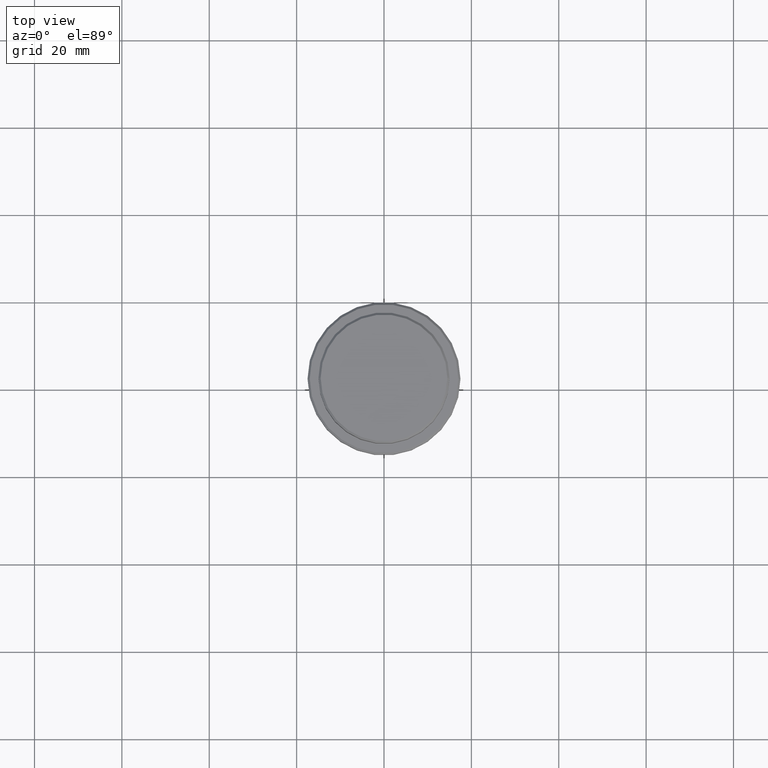
[diagram: clean part render]
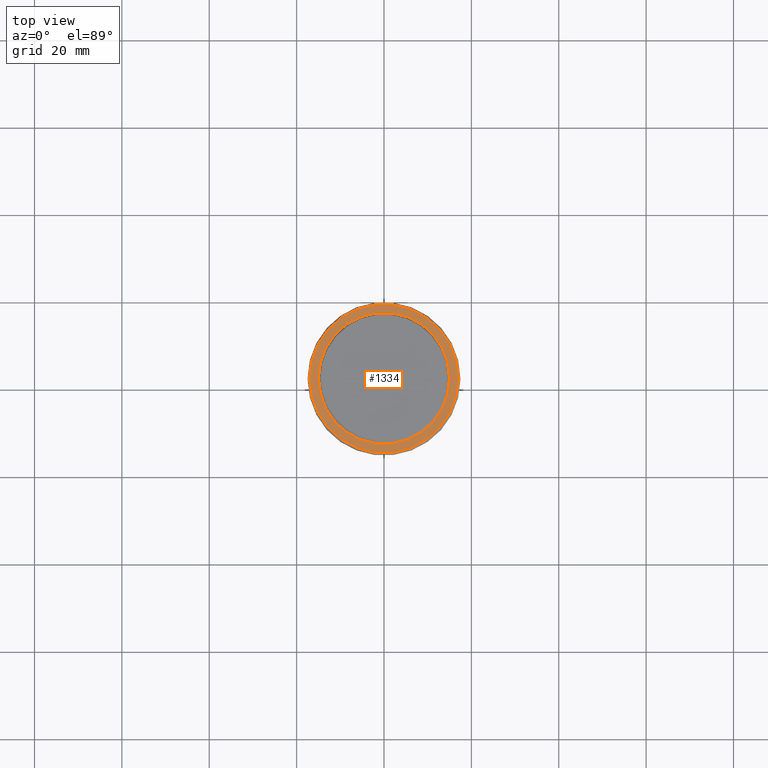
[diagram: same view with one face highlighted and labeled with its STEP entity id]
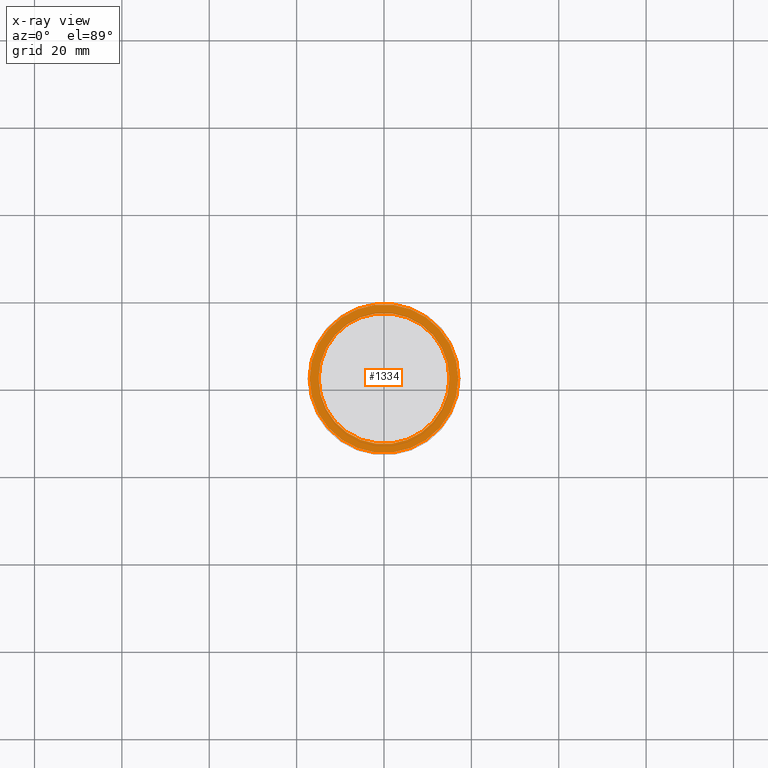
[diagram: x-ray of the same camera — body ghosted, the highlighted face saturated]
A machine part, top view. The second image highlights one B-rep face of the part: STEP entity #1334.
The next image is the same camera in x-ray: the body ghosted, the highlighted face saturated — about 0% of this face is hidden behind the body in this view.
In plain terms, the highlighted planar face has unit normal (0, -0, 1).
Its self-contained STEP definition (entity closure, byte-faithful):
#38 = CARTESIAN_POINT ( 'NONE',  ( 0.000000000000000000, 14.49999999999999467, -9.000000000000000000 ) ) ;
#66 = CIRCLE ( 'NONE', #517, 14.99999999999999289 ) ;
#98 = DIRECTION ( 'NONE',  ( 0.000000000000000000, 0.000000000000000000, -1.000000000000000000 ) ) ;
#146 = AXIS2_PLACEMENT_3D ( 'NONE', #398, #1290, #604 ) ;
#246 = EDGE_CURVE ( 'NONE', #1289, #1051, #868, .T. ) ;
#254 = EDGE_LOOP ( 'NONE', ( #673, #1263 ) ) ;
#258 = DIRECTION ( 'NONE',  ( -0.000000000000000000, -0.000000000000000000, 1.000000000000000000 ) ) ;
#398 = CARTESIAN_POINT ( 'NONE',  ( 0.000000000000000000, 0.000000000000000000, -9.000000000000000000 ) ) ;
#420 = EDGE_CURVE ( 'NONE', #1051, #1289, #66, .T. ) ;
#435 = AXIS2_PLACEMENT_3D ( 'NONE', #38, #688, #1224 ) ;
#478 = PLANE ( 'NONE',  #435 ) ;
#485 = DIRECTION ( 'NONE',  ( 1.000000000000000000, 0.000000000000000000, 0.000000000000000000 ) ) ;
#517 = AXIS2_PLACEMENT_3D ( 'NONE', #1412, #98, #1399 ) ;
#551 = VERTEX_POINT ( 'NONE', #958 ) ;
#567 = CARTESIAN_POINT ( 'NONE',  ( -14.99999999999999289, 1.836970198721028800E-15, -9.000000000000000000 ) ) ;
#602 = CIRCLE ( 'NONE', #818, 16.99999999999998579 ) ;
#604 = DIRECTION ( 'NONE',  ( 1.000000000000000000, 0.000000000000000000, 0.000000000000000000 ) ) ;
#640 = ORIENTED_EDGE ( 'NONE', *, *, #246, .T. ) ;
#673 = ORIENTED_EDGE ( 'NONE', *, *, #951, .T. ) ;
#688 = DIRECTION ( 'NONE',  ( 0.000000000000000000, -0.000000000000000000, 1.000000000000000000 ) ) ;
#702 = CARTESIAN_POINT ( 'NONE',  ( -16.99999999999998579, 0.000000000000000000, -9.000000000000000000 ) ) ;
#733 = VERTEX_POINT ( 'NONE', #702 ) ;
#818 = AXIS2_PLACEMENT_3D ( 'NONE', #1249, #258, #485 ) ;
#826 = CARTESIAN_POINT ( 'NONE',  ( 0.000000000000000000, 0.000000000000000000, -9.000000000000000000 ) ) ;
#835 = ORIENTED_EDGE ( 'NONE', *, *, #420, .T. ) ;
#868 = CIRCLE ( 'NONE', #146, 14.99999999999999289 ) ;
#930 = AXIS2_PLACEMENT_3D ( 'NONE', #826, #1057, #1049 ) ;
#951 = EDGE_CURVE ( 'NONE', #733, #551, #602, .T. ) ;
#958 = CARTESIAN_POINT ( 'NONE',  ( 16.99999999999998579, 2.112515728529183278E-15, -9.000000000000000000 ) ) ;
#965 = CARTESIAN_POINT ( 'NONE',  ( 14.99999999999999289, 0.000000000000000000, -9.000000000000000000 ) ) ;
#1049 = DIRECTION ( 'NONE',  ( 1.000000000000000000, 0.000000000000000000, 0.000000000000000000 ) ) ;
#1051 = VERTEX_POINT ( 'NONE', #965 ) ;
#1057 = DIRECTION ( 'NONE',  ( -0.000000000000000000, -0.000000000000000000, 1.000000000000000000 ) ) ;
#1118 = CIRCLE ( 'NONE', #930, 16.99999999999998579 ) ;
#1125 = FACE_OUTER_BOUND ( 'NONE', #254, .T. ) ;
#1224 = DIRECTION ( 'NONE',  ( 1.000000000000000000, 0.000000000000000000, 0.000000000000000000 ) ) ;
#1247 = EDGE_LOOP ( 'NONE', ( #835, #640 ) ) ;
#1249 = CARTESIAN_POINT ( 'NONE',  ( 0.000000000000000000, 0.000000000000000000, -9.000000000000000000 ) ) ;
#1263 = ORIENTED_EDGE ( 'NONE', *, *, #1381, .T. ) ;
#1289 = VERTEX_POINT ( 'NONE', #567 ) ;
#1290 = DIRECTION ( 'NONE',  ( 0.000000000000000000, 0.000000000000000000, -1.000000000000000000 ) ) ;
#1334 = ADVANCED_FACE ( 'NONE', ( #1125, #1338 ), #478, .T. ) ;
#1338 = FACE_BOUND ( 'NONE', #1247, .T. ) ;
#1381 = EDGE_CURVE ( 'NONE', #551, #733, #1118, .T. ) ;
#1399 = DIRECTION ( 'NONE',  ( 1.000000000000000000, 0.000000000000000000, 0.000000000000000000 ) ) ;
#1412 = CARTESIAN_POINT ( 'NONE',  ( 0.000000000000000000, 0.000000000000000000, -9.000000000000000000 ) ) ;